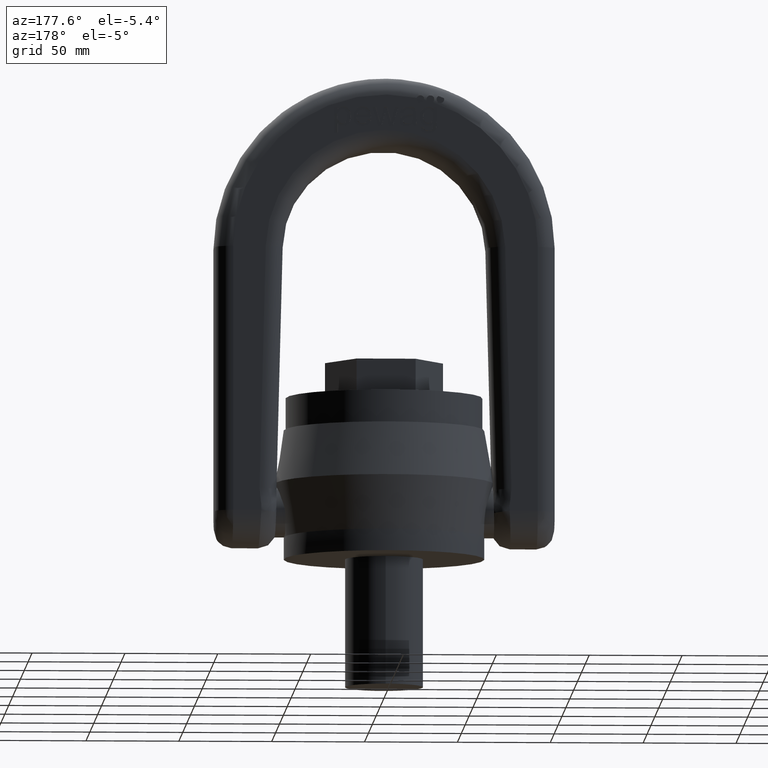
[diagram: clean part render]
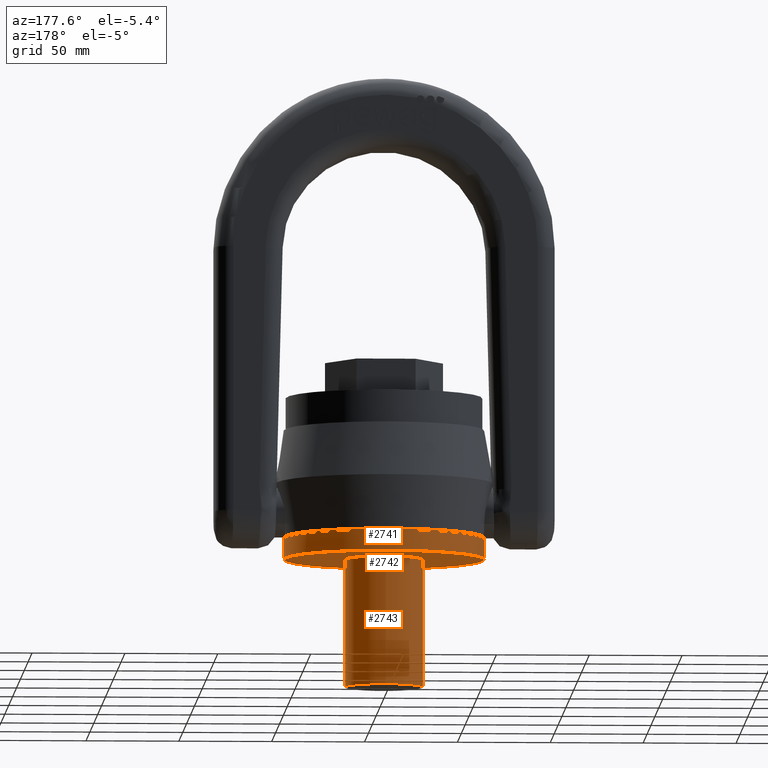
[diagram: same view with one multi-face feature highlighted, each face labeled with its STEP entity id]
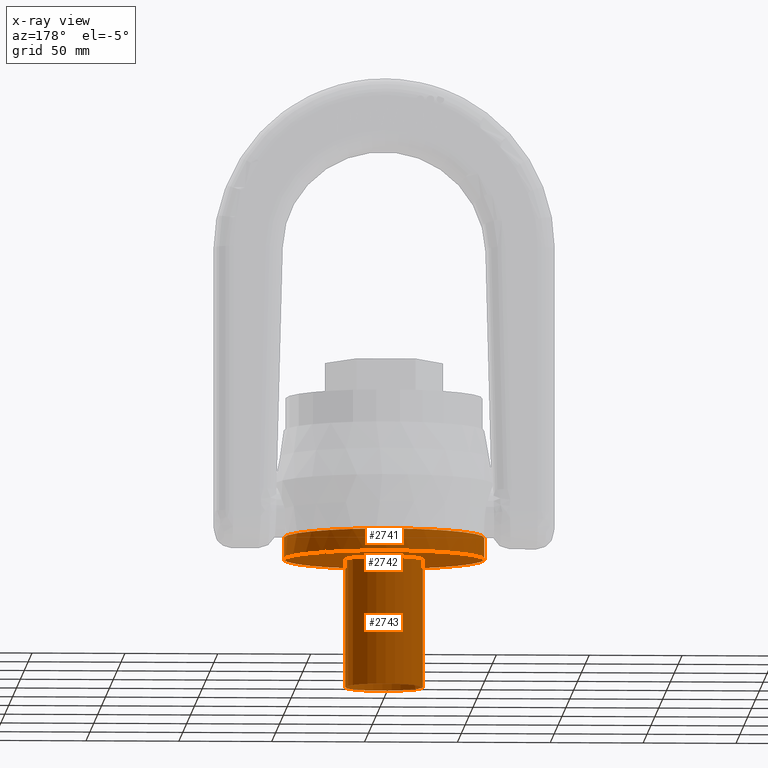
[diagram: x-ray of the same camera — body ghosted, the whole feature saturated]
A machine part, auxiliary view. The highlighted faces form ONE feature: a stepped (counterbored) hole: 2 coaxial cylindrical walls of radii 21 -> 54 mm joined by 1 annular planar shoulder face(s). The faces share edges in the B-rep.
The next image is the same camera in x-ray: the body ghosted and the whole hole feature saturated, so the bore chain is visible through the body.
Their STEP definitions:
[1] entity #2741 (Cylinder):
#2741=ADVANCED_FACE('',(#3003,#3004),#2981,.T.);
#2981=CYLINDRICAL_SURFACE('',#5608,54.);
#3003=FACE_BOUND('',#3063,.T.);
#3004=FACE_BOUND('',#3064,.T.);
#3063=EDGE_LOOP('',(#3337));
#3064=EDGE_LOOP('',(#3338));
#3337=ORIENTED_EDGE('',*,*,#4945,.T.);
#3338=ORIENTED_EDGE('',*,*,#4946,.F.);
#4545=VERTEX_POINT('',#6600);
#4546=VERTEX_POINT('',#6602);
#4945=EDGE_CURVE('',#4545,#4545,#5549,.T.);
#4946=EDGE_CURVE('',#4546,#4546,#5550,.T.);
#5549=CIRCLE('',#5606,54.);
#5550=CIRCLE('',#5607,54.);
#5606=AXIS2_PLACEMENT_3D('',#6599,#5814,#5815);
#5607=AXIS2_PLACEMENT_3D('',#6601,#5816,#5817);
#5608=AXIS2_PLACEMENT_3D('',#6603,#5818,#5819);
#5814=DIRECTION('',(0.,0.,-1.));
#5815=DIRECTION('',(-1.,0.,0.));
#5816=DIRECTION('',(0.,0.,-1.));
#5817=DIRECTION('',(-6.12323399573677E-17,1.,0.));
#5818=DIRECTION('',(0.,0.,-1.));
#5819=DIRECTION('',(-1.,0.,0.));
#6599=CARTESIAN_POINT('',(0.,0.,11.7));
#6600=CARTESIAN_POINT('',(-54.,0.,11.7));
#6601=CARTESIAN_POINT('',(0.,0.,0.));
#6602=CARTESIAN_POINT('',(-3.30654635769785E-15,54.,0.));
#6603=CARTESIAN_POINT('',(0.,0.,11.7));
[2] entity #2743 (Cylinder):
#2743=ADVANCED_FACE('',(#3007,#3008),#2982,.T.);
#2982=CYLINDRICAL_SURFACE('',#5612,21.);
#3007=FACE_BOUND('',#3067,.T.);
#3008=FACE_BOUND('',#3068,.T.);
#3067=EDGE_LOOP('',(#3341));
#3068=EDGE_LOOP('',(#3342));
#3341=ORIENTED_EDGE('',*,*,#4948,.F.);
#3342=ORIENTED_EDGE('',*,*,#4947,.T.);
#4547=VERTEX_POINT('',#6605);
#4548=VERTEX_POINT('',#6608);
#4947=EDGE_CURVE('',#4547,#4547,#5551,.T.);
#4948=EDGE_CURVE('',#4548,#4548,#5552,.T.);
#5551=CIRCLE('',#5609,21.);
#5552=CIRCLE('',#5611,21.);
#5609=AXIS2_PLACEMENT_3D('',#6604,#5820,#5821);
#5611=AXIS2_PLACEMENT_3D('',#6607,#5824,#5825);
#5612=AXIS2_PLACEMENT_3D('',#6609,#5826,#5827);
#5820=DIRECTION('',(0.,0.,-1.));
#5821=DIRECTION('',(-6.12323399573677E-17,1.,0.));
#5824=DIRECTION('',(0.,0.,-1.));
#5825=DIRECTION('',(-6.12323399573677E-17,1.,0.));
#5826=DIRECTION('',(0.,0.,1.));
#5827=DIRECTION('',(1.,0.,0.));
#6604=CARTESIAN_POINT('',(0.,0.,0.));
#6605=CARTESIAN_POINT('',(-1.28587913910472E-15,21.,0.));
#6607=CARTESIAN_POINT('',(0.,0.,-69.));
#6608=CARTESIAN_POINT('',(-1.28587913910472E-15,21.,-69.));
#6609=CARTESIAN_POINT('',(0.,0.,-69.));
[3] entity #2742 (Plane):
#2627=PLANE('',#5610);
#2742=ADVANCED_FACE('',(#3005,#3006),#2627,.T.);
#3005=FACE_BOUND('',#3065,.T.);
#3006=FACE_BOUND('',#3066,.T.);
#3065=EDGE_LOOP('',(#3339));
#3066=EDGE_LOOP('',(#3340));
#3339=ORIENTED_EDGE('',*,*,#4947,.F.);
#3340=ORIENTED_EDGE('',*,*,#4946,.T.);
#4546=VERTEX_POINT('',#6602);
#4547=VERTEX_POINT('',#6605);
#4946=EDGE_CURVE('',#4546,#4546,#5550,.T.);
#4947=EDGE_CURVE('',#4547,#4547,#5551,.T.);
#5550=CIRCLE('',#5607,54.);
#5551=CIRCLE('',#5609,21.);
#5607=AXIS2_PLACEMENT_3D('',#6601,#5816,#5817);
#5609=AXIS2_PLACEMENT_3D('',#6604,#5820,#5821);
#5610=AXIS2_PLACEMENT_3D('',#6606,#5822,#5823);
#5816=DIRECTION('',(0.,0.,-1.));
#5817=DIRECTION('',(-6.12323399573677E-17,1.,0.));
#5820=DIRECTION('',(0.,0.,-1.));
#5821=DIRECTION('',(-6.12323399573677E-17,1.,0.));
#5822=DIRECTION('',(0.,0.,-1.));
#5823=DIRECTION('',(-1.,0.,0.));
#6601=CARTESIAN_POINT('',(0.,0.,0.));
#6602=CARTESIAN_POINT('',(-3.30654635769785E-15,54.,0.));
#6604=CARTESIAN_POINT('',(0.,0.,0.));
#6605=CARTESIAN_POINT('',(-1.28587913910472E-15,21.,0.));
#6606=CARTESIAN_POINT('',(0.,0.,0.));